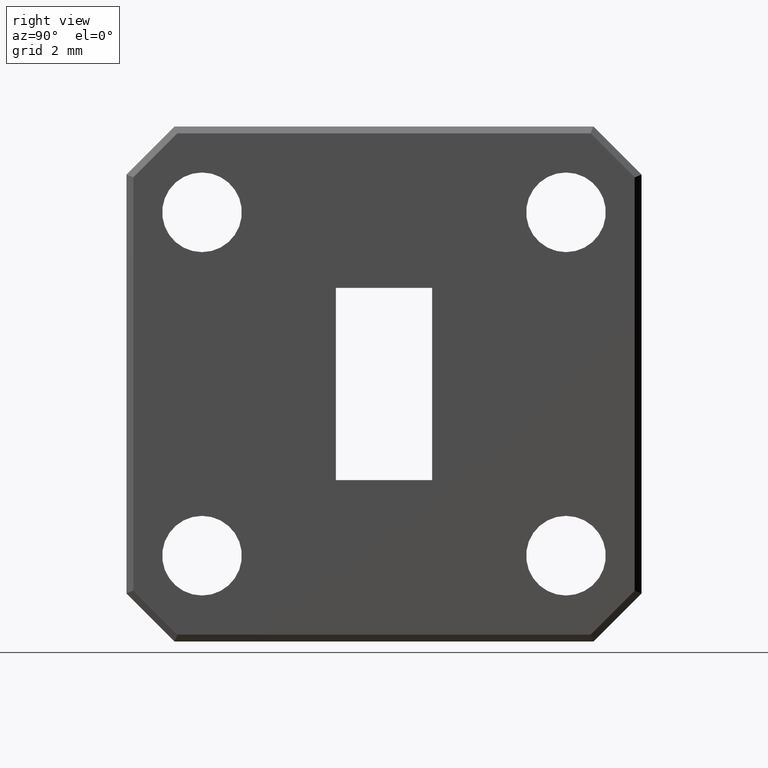
[diagram: clean part render]
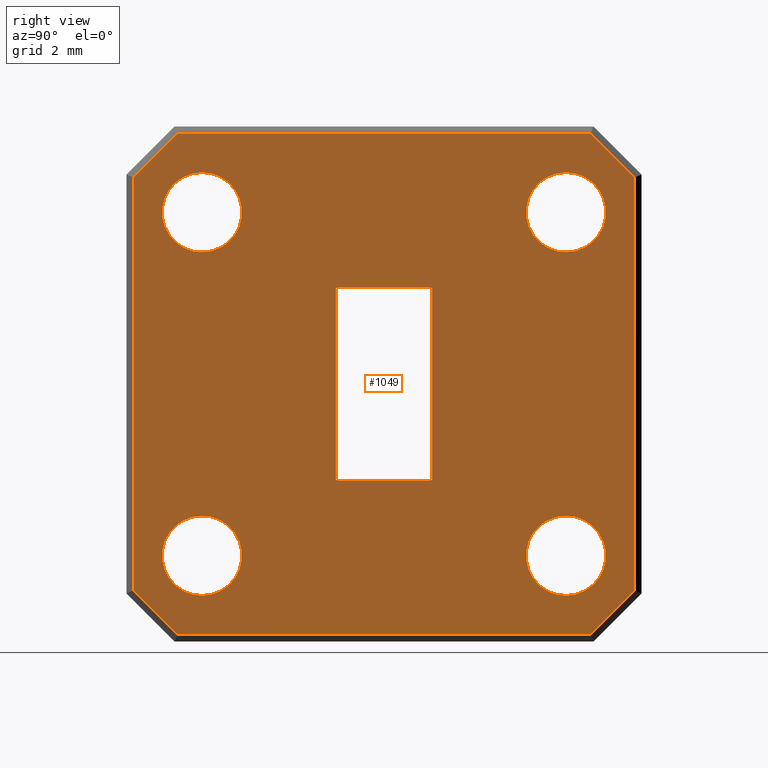
[diagram: same view with one face highlighted and labeled with its STEP entity id]
A machine part, right view. The second image highlights one B-rep face of the part: STEP entity #1049.
In plain terms, the highlighted planar face has unit normal (1, -0, 0).
Its self-contained STEP definition (entity closure, byte-faithful):
#1 = EDGE_CURVE ( 'NONE', #955, #219, #618, .T. ) ;
#10 = AXIS2_PLACEMENT_3D ( 'NONE', #974, #64, #616 ) ;
#20 = CARTESIAN_POINT ( 'NONE',  ( 0.09700000000000000289, -0.06999999999999997891, -0.1399999999999999856 ) ) ;
#28 = AXIS2_PLACEMENT_3D ( 'NONE', #94, #1097, #377 ) ;
#30 = CIRCLE ( 'NONE', #1165, 0.05799999999999952416 ) ;
#46 = LINE ( 'NONE', #883, #558 ) ;
#47 = EDGE_LOOP ( 'NONE', ( #735, #66 ) ) ;
#49 = CARTESIAN_POINT ( 'NONE',  ( 0.09700000000000004452, -0.2650000000000000133, -0.1920000000000005036 ) ) ;
#63 = CARTESIAN_POINT ( 'NONE',  ( 0.09700000000000004452, 0.2650000000000000133, -0.2500000000000000000 ) ) ;
#64 = DIRECTION ( 'NONE',  ( 1.000000000000000000, -0.000000000000000000, -0.000000000000000000 ) ) ;
#66 = ORIENTED_EDGE ( 'NONE', *, *, #1139, .F. ) ;
#68 = DIRECTION ( 'NONE',  ( 0.000000000000000000, 1.000000000000000000, 0.000000000000000000 ) ) ;
#70 = ORIENTED_EDGE ( 'NONE', *, *, #1020, .T. ) ;
#83 = EDGE_CURVE ( 'NONE', #515, #781, #266, .T. ) ;
#91 = CARTESIAN_POINT ( 'NONE',  ( 0.09700000000000004452, 0.2650000000000000133, -0.1920000000000004758 ) ) ;
#94 = CARTESIAN_POINT ( 'NONE',  ( 0.09700000000000004452, -0.2650000000000000133, -0.2500000000000000000 ) ) ;
#101 = CARTESIAN_POINT ( 'NONE',  ( 0.09700000000000004452, -0.2650000000000000133, 0.1920000000000005036 ) ) ;
#115 = CARTESIAN_POINT ( 'NONE',  ( 0.09700000000000000289, -0.06999999999999997891, 0.1400000000000000133 ) ) ;
#127 = VECTOR ( 'NONE', #362, 39.37007874015748143 ) ;
#128 = VECTOR ( 'NONE', #712, 39.37007874015748143 ) ;
#143 = ORIENTED_EDGE ( 'NONE', *, *, #611, .F. ) ;
#147 = AXIS2_PLACEMENT_3D ( 'NONE', #615, #791, #415 ) ;
#167 = VECTOR ( 'NONE', #752, 39.37007874015748143 ) ;
#169 = CARTESIAN_POINT ( 'NONE',  ( 0.09700000000000000289, 0.07000000000000003442, 0.1400000000000000133 ) ) ;
#189 = ORIENTED_EDGE ( 'NONE', *, *, #368, .F. ) ;
#199 = LINE ( 'NONE', #20, #658 ) ;
#204 = CARTESIAN_POINT ( 'NONE',  ( 0.09700000000000000289, -0.06999999999999997891, 0.1400000000000000133 ) ) ;
#206 = VECTOR ( 'NONE', #376, 39.37007874015748143 ) ;
#217 = CARTESIAN_POINT ( 'NONE',  ( 0.09700000000000000289, 0.07000000000000003442, 0.1400000000000000133 ) ) ;
#219 = VERTEX_POINT ( 'NONE', #49 ) ;
#223 = ORIENTED_EDGE ( 'NONE', *, *, #83, .F. ) ;
#231 = ORIENTED_EDGE ( 'NONE', *, *, #534, .F. ) ;
#266 = CIRCLE ( 'NONE', #1009, 0.05799999999999948946 ) ;
#271 = CARTESIAN_POINT ( 'NONE',  ( 0.09700000000000000289, -0.06999999999999997891, 0.1400000000000000133 ) ) ;
#274 = CARTESIAN_POINT ( 'NONE',  ( 0.09700000000000000289, -0.3329289321881340191, 0.3329289321881347408 ) ) ;
#279 = ORIENTED_EDGE ( 'NONE', *, *, #740, .T. ) ;
#303 = DIRECTION ( 'NONE',  ( 0.000000000000000000, 1.000000000000000000, -2.439149994343092159E-16 ) ) ;
#304 = VERTEX_POINT ( 'NONE', #770 ) ;
#331 = EDGE_CURVE ( 'NONE', #482, #407, #199, .T. ) ;
#333 = VERTEX_POINT ( 'NONE', #393 ) ;
#338 = CARTESIAN_POINT ( 'NONE',  ( 0.09700000000000000289, -0.3329289321881356289, -0.3329289321881336861 ) ) ;
#339 = VERTEX_POINT ( 'NONE', #383 ) ;
#347 = PLANE ( 'NONE',  #390 ) ;
#350 = VERTEX_POINT ( 'NONE', #1125 ) ;
#353 = ORIENTED_EDGE ( 'NONE', *, *, #628, .T. ) ;
#354 = DIRECTION ( 'NONE',  ( 0.000000000000000000, 0.000000000000000000, -1.000000000000000000 ) ) ;
#362 = DIRECTION ( 'NONE',  ( 0.000000000000000000, 0.7071067811865454633, -0.7071067811865495711 ) ) ;
#368 = EDGE_CURVE ( 'NONE', #384, #568, #1104, .T. ) ;
#369 = VECTOR ( 'NONE', #1177, 39.37007874015748143 ) ;
#376 = DIRECTION ( 'NONE',  ( 0.000000000000000000, -0.7071067811865461294, 0.7071067811865489050 ) ) ;
#377 = DIRECTION ( 'NONE',  ( 0.000000000000000000, 0.000000000000000000, -1.000000000000000000 ) ) ;
#379 = EDGE_CURVE ( 'NONE', #1047, #1146, #1061, .T. ) ;
#381 = LINE ( 'NONE', #115, #167 ) ;
#382 = VERTEX_POINT ( 'NONE', #888 ) ;
#383 = CARTESIAN_POINT ( 'NONE',  ( 0.09700000000000000289, 0.3008578643762691573, 0.3650000000000002132 ) ) ;
#384 = VERTEX_POINT ( 'NONE', #217 ) ;
#386 = VECTOR ( 'NONE', #499, 39.37007874015748143 ) ;
#388 = VECTOR ( 'NONE', #840, 39.37007874015748143 ) ;
#390 = AXIS2_PLACEMENT_3D ( 'NONE', #1172, #1176, #354 ) ;
#393 = CARTESIAN_POINT ( 'NONE',  ( 0.09700000000000004452, 0.2650000000000000133, 0.1920000000000004758 ) ) ;
#395 = EDGE_CURVE ( 'NONE', #333, #1132, #539, .T. ) ;
#396 = CARTESIAN_POINT ( 'NONE',  ( 0.09700000000000000289, -0.3008578643762686022, 0.3650000000000000466 ) ) ;
#406 = AXIS2_PLACEMENT_3D ( 'NONE', #63, #803, #1071 ) ;
#407 = VERTEX_POINT ( 'NONE', #608 ) ;
#413 = EDGE_LOOP ( 'NONE', ( #878, #223 ) ) ;
#415 = DIRECTION ( 'NONE',  ( 0.000000000000000000, 0.000000000000000000, -1.000000000000000000 ) ) ;
#426 = VECTOR ( 'NONE', #470, 39.37007874015748143 ) ;
#428 = EDGE_LOOP ( 'NONE', ( #637, #231 ) ) ;
#437 = CARTESIAN_POINT ( 'NONE',  ( 0.09700000000000000289, 0.3049999999999995492, -0.3650000000000000466 ) ) ;
#449 = CIRCLE ( 'NONE', #793, 0.05799999999999948946 ) ;
#453 = DIRECTION ( 'NONE',  ( 0.000000000000000000, 0.000000000000000000, 1.000000000000000000 ) ) ;
#458 = FACE_BOUND ( 'NONE', #47, .T. ) ;
#463 = CARTESIAN_POINT ( 'NONE',  ( 0.09700000000000004452, 0.2650000000000000133, 0.2500000000000000000 ) ) ;
#464 = CARTESIAN_POINT ( 'NONE',  ( 0.09700000000000004452, -0.2650000000000000133, 0.2500000000000000000 ) ) ;
#470 = DIRECTION ( 'NONE',  ( -0.000000000000000000, -0.000000000000000000, 1.000000000000000000 ) ) ;
#477 = EDGE_CURVE ( 'NONE', #350, #1159, #1073, .T. ) ;
#482 = VERTEX_POINT ( 'NONE', #794 ) ;
#499 = DIRECTION ( 'NONE',  ( 0.000000000000000000, 0.7071067811865495711, 0.7071067811865454633 ) ) ;
#512 = CARTESIAN_POINT ( 'NONE',  ( 0.09700000000000004452, -0.2650000000000000133, -0.2500000000000000000 ) ) ;
#515 = VERTEX_POINT ( 'NONE', #784 ) ;
#518 = DIRECTION ( 'NONE',  ( 0.000000000000000000, 0.000000000000000000, -1.000000000000000000 ) ) ;
#530 = ORIENTED_EDGE ( 'NONE', *, *, #331, .F. ) ;
#534 = EDGE_CURVE ( 'NONE', #219, #955, #449, .T. ) ;
#535 = LINE ( 'NONE', #274, #369 ) ;
#539 = CIRCLE ( 'NONE', #10, 0.05799999999999952416 ) ;
#542 = FACE_BOUND ( 'NONE', #413, .T. ) ;
#550 = EDGE_CURVE ( 'NONE', #591, #564, #46, .T. ) ;
#555 = EDGE_CURVE ( 'NONE', #1132, #333, #30, .T. ) ;
#557 = CARTESIAN_POINT ( 'NONE',  ( 0.09700000000000000289, 0.3650000000000001577, -0.3008578643762691573 ) ) ;
#558 = VECTOR ( 'NONE', #708, 39.37007874015748143 ) ;
#564 = VERTEX_POINT ( 'NONE', #714 ) ;
#568 = VERTEX_POINT ( 'NONE', #271 ) ;
#587 = EDGE_CURVE ( 'NONE', #814, #591, #535, .T. ) ;
#591 = VERTEX_POINT ( 'NONE', #985 ) ;
#598 = EDGE_LOOP ( 'NONE', ( #841, #962 ) ) ;
#603 = DIRECTION ( 'NONE',  ( 1.000000000000000000, -0.000000000000000000, -0.000000000000000000 ) ) ;
#608 = CARTESIAN_POINT ( 'NONE',  ( 0.09700000000000000289, 0.07000000000000003442, -0.1400000000000000133 ) ) ;
#610 = EDGE_CURVE ( 'NONE', #564, #304, #822, .T. ) ;
#611 = EDGE_CURVE ( 'NONE', #407, #384, #989, .T. ) ;
#615 = CARTESIAN_POINT ( 'NONE',  ( 0.09700000000000004452, -0.2650000000000000133, 0.2500000000000000000 ) ) ;
#616 = DIRECTION ( 'NONE',  ( 0.000000000000000000, 0.000000000000000000, -1.000000000000000000 ) ) ;
#618 = CIRCLE ( 'NONE', #28, 0.05799999999999948946 ) ;
#627 = ORIENTED_EDGE ( 'NONE', *, *, #1026, .T. ) ;
#628 = EDGE_CURVE ( 'NONE', #1146, #382, #1086, .T. ) ;
#637 = ORIENTED_EDGE ( 'NONE', *, *, #1, .F. ) ;
#643 = FACE_BOUND ( 'NONE', #428, .T. ) ;
#644 = DIRECTION ( 'NONE',  ( 0.000000000000000000, 0.000000000000000000, -1.000000000000000000 ) ) ;
#658 = VECTOR ( 'NONE', #303, 39.37007874015748143 ) ;
#661 = CIRCLE ( 'NONE', #406, 0.05799999999999955885 ) ;
#676 = CARTESIAN_POINT ( 'NONE',  ( 0.09700000000000000289, 0.3329289321881352404, 0.3329289321881339636 ) ) ;
#677 = AXIS2_PLACEMENT_3D ( 'NONE', #1040, #603, #865 ) ;
#684 = EDGE_LOOP ( 'NONE', ( #353, #279, #70, #936, #922, #1138, #627, #747 ) ) ;
#703 = CARTESIAN_POINT ( 'NONE',  ( 0.09700000000000000289, 0.3329289321881335750, -0.3329289321881355179 ) ) ;
#708 = DIRECTION ( 'NONE',  ( 0.000000000000000000, 0.000000000000000000, -1.000000000000000000 ) ) ;
#712 = DIRECTION ( 'NONE',  ( 0.000000000000000000, -1.000000000000000000, -1.821231995776175725E-16 ) ) ;
#714 = CARTESIAN_POINT ( 'NONE',  ( 0.09700000000000000289, -0.3650000000000001577, -0.3008578643762689908 ) ) ;
#719 = EDGE_CURVE ( 'NONE', #568, #482, #381, .T. ) ;
#733 = CARTESIAN_POINT ( 'NONE',  ( 0.09700000000000000289, -0.3049999999999996603, 0.3650000000000000466 ) ) ;
#735 = ORIENTED_EDGE ( 'NONE', *, *, #477, .F. ) ;
#740 = EDGE_CURVE ( 'NONE', #382, #339, #1096, .T. ) ;
#742 = DIRECTION ( 'NONE',  ( 1.000000000000000000, -0.000000000000000000, -0.000000000000000000 ) ) ;
#747 = ORIENTED_EDGE ( 'NONE', *, *, #379, .T. ) ;
#752 = DIRECTION ( 'NONE',  ( 0.000000000000000000, 0.000000000000000000, -1.000000000000000000 ) ) ;
#759 = VECTOR ( 'NONE', #68, 39.37007874015748143 ) ;
#770 = CARTESIAN_POINT ( 'NONE',  ( 0.09700000000000000289, -0.3008578643762693794, -0.3650000000000000466 ) ) ;
#781 = VERTEX_POINT ( 'NONE', #101 ) ;
#784 = CARTESIAN_POINT ( 'NONE',  ( 0.09700000000000004452, -0.2650000000000000133, 0.3079999999999994964 ) ) ;
#791 = DIRECTION ( 'NONE',  ( 1.000000000000000000, -0.000000000000000000, -0.000000000000000000 ) ) ;
#793 = AXIS2_PLACEMENT_3D ( 'NONE', #512, #876, #518 ) ;
#794 = CARTESIAN_POINT ( 'NONE',  ( 0.09700000000000000289, -0.06999999999999997891, -0.1399999999999999856 ) ) ;
#798 = CARTESIAN_POINT ( 'NONE',  ( 0.09700000000000004452, -0.2650000000000000133, -0.3079999999999994964 ) ) ;
#803 = DIRECTION ( 'NONE',  ( 1.000000000000000000, -0.000000000000000000, -0.000000000000000000 ) ) ;
#809 = LINE ( 'NONE', #437, #759 ) ;
#814 = VERTEX_POINT ( 'NONE', #396 ) ;
#821 = FACE_OUTER_BOUND ( 'NONE', #684, .T. ) ;
#822 = LINE ( 'NONE', #338, #127 ) ;
#837 = DIRECTION ( 'NONE',  ( 1.000000000000000000, -0.000000000000000000, -0.000000000000000000 ) ) ;
#840 = DIRECTION ( 'NONE',  ( -0.000000000000000000, -1.000000000000000000, -0.000000000000000000 ) ) ;
#841 = ORIENTED_EDGE ( 'NONE', *, *, #395, .F. ) ;
#865 = DIRECTION ( 'NONE',  ( 0.000000000000000000, 0.000000000000000000, -1.000000000000000000 ) ) ;
#876 = DIRECTION ( 'NONE',  ( 1.000000000000000000, -0.000000000000000000, -0.000000000000000000 ) ) ;
#878 = ORIENTED_EDGE ( 'NONE', *, *, #893, .F. ) ;
#883 = CARTESIAN_POINT ( 'NONE',  ( 0.09700000000000000289, -0.3650000000000001577, -0.3049999999999998823 ) ) ;
#888 = CARTESIAN_POINT ( 'NONE',  ( 0.09700000000000000289, 0.3650000000000001577, 0.3008578643762689353 ) ) ;
#889 = ORIENTED_EDGE ( 'NONE', *, *, #719, .F. ) ;
#892 = CARTESIAN_POINT ( 'NONE',  ( 0.09700000000000000289, 0.3008578643762688798, -0.3650000000000000466 ) ) ;
#893 = EDGE_CURVE ( 'NONE', #781, #515, #1186, .T. ) ;
#908 = FACE_BOUND ( 'NONE', #598, .T. ) ;
#922 = ORIENTED_EDGE ( 'NONE', *, *, #550, .T. ) ;
#936 = ORIENTED_EDGE ( 'NONE', *, *, #587, .T. ) ;
#951 = VECTOR ( 'NONE', #453, 39.37007874015748143 ) ;
#955 = VERTEX_POINT ( 'NONE', #798 ) ;
#962 = ORIENTED_EDGE ( 'NONE', *, *, #555, .F. ) ;
#974 = CARTESIAN_POINT ( 'NONE',  ( 0.09700000000000004452, 0.2650000000000000133, 0.2500000000000000000 ) ) ;
#984 = CARTESIAN_POINT ( 'NONE',  ( 0.09700000000000004452, 0.2650000000000000133, 0.3079999999999995519 ) ) ;
#985 = CARTESIAN_POINT ( 'NONE',  ( 0.09700000000000000289, -0.3650000000000001577, 0.3008578643762687133 ) ) ;
#989 = LINE ( 'NONE', #169, #426 ) ;
#991 = EDGE_LOOP ( 'NONE', ( #143, #530, #889, #189 ) ) ;
#1001 = CARTESIAN_POINT ( 'NONE',  ( 0.09700000000000000289, 0.3650000000000001577, 0.3049999999999998823 ) ) ;
#1009 = AXIS2_PLACEMENT_3D ( 'NONE', #464, #837, #1016 ) ;
#1016 = DIRECTION ( 'NONE',  ( 0.000000000000000000, 0.000000000000000000, -1.000000000000000000 ) ) ;
#1020 = EDGE_CURVE ( 'NONE', #339, #814, #1044, .T. ) ;
#1026 = EDGE_CURVE ( 'NONE', #304, #1047, #809, .T. ) ;
#1040 = CARTESIAN_POINT ( 'NONE',  ( 0.09700000000000004452, 0.2650000000000000133, -0.2500000000000000000 ) ) ;
#1044 = LINE ( 'NONE', #733, #128 ) ;
#1047 = VERTEX_POINT ( 'NONE', #892 ) ;
#1049 = ADVANCED_FACE ( 'NONE', ( #1091, #542, #908, #458, #643, #821 ), #347, .T. ) ;
#1061 = LINE ( 'NONE', #703, #386 ) ;
#1071 = DIRECTION ( 'NONE',  ( 0.000000000000000000, 0.000000000000000000, -1.000000000000000000 ) ) ;
#1073 = CIRCLE ( 'NONE', #677, 0.05799999999999955885 ) ;
#1086 = LINE ( 'NONE', #1001, #951 ) ;
#1091 = FACE_BOUND ( 'NONE', #991, .T. ) ;
#1096 = LINE ( 'NONE', #676, #206 ) ;
#1097 = DIRECTION ( 'NONE',  ( 1.000000000000000000, -0.000000000000000000, -0.000000000000000000 ) ) ;
#1104 = LINE ( 'NONE', #204, #388 ) ;
#1125 = CARTESIAN_POINT ( 'NONE',  ( 0.09700000000000004452, 0.2650000000000000133, -0.3079999999999995519 ) ) ;
#1132 = VERTEX_POINT ( 'NONE', #984 ) ;
#1138 = ORIENTED_EDGE ( 'NONE', *, *, #610, .T. ) ;
#1139 = EDGE_CURVE ( 'NONE', #1159, #350, #661, .T. ) ;
#1146 = VERTEX_POINT ( 'NONE', #557 ) ;
#1159 = VERTEX_POINT ( 'NONE', #91 ) ;
#1165 = AXIS2_PLACEMENT_3D ( 'NONE', #463, #742, #644 ) ;
#1172 = CARTESIAN_POINT ( 'NONE',  ( 0.09700000000000000289, 0.000000000000000000, 0.000000000000000000 ) ) ;
#1176 = DIRECTION ( 'NONE',  ( 1.000000000000000000, -0.000000000000000000, 0.000000000000000000 ) ) ;
#1177 = DIRECTION ( 'NONE',  ( 0.000000000000000000, -0.7071067811865482389, -0.7071067811865467956 ) ) ;
#1186 = CIRCLE ( 'NONE', #147, 0.05799999999999948946 ) ;